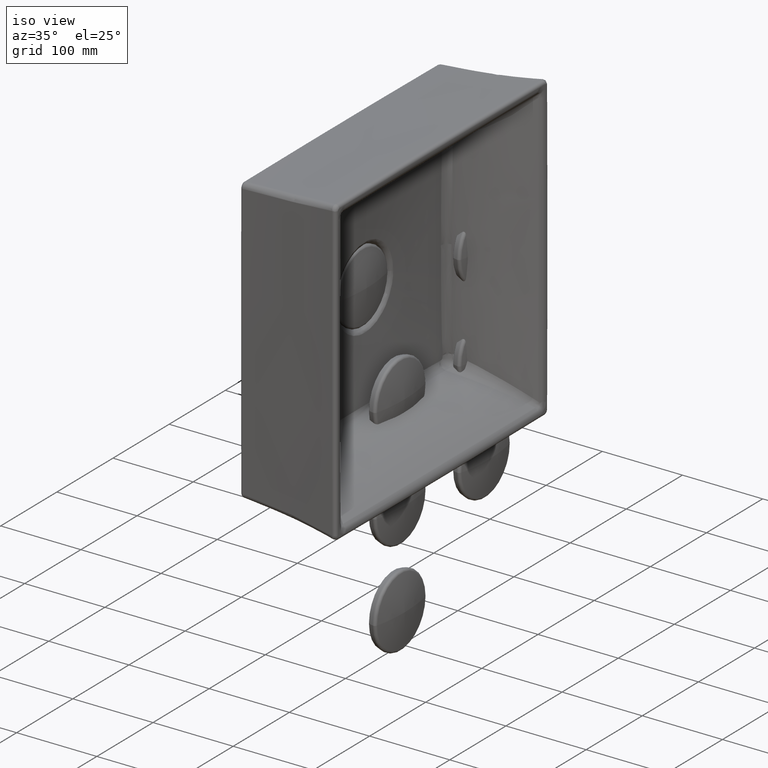
[diagram: clean part render]
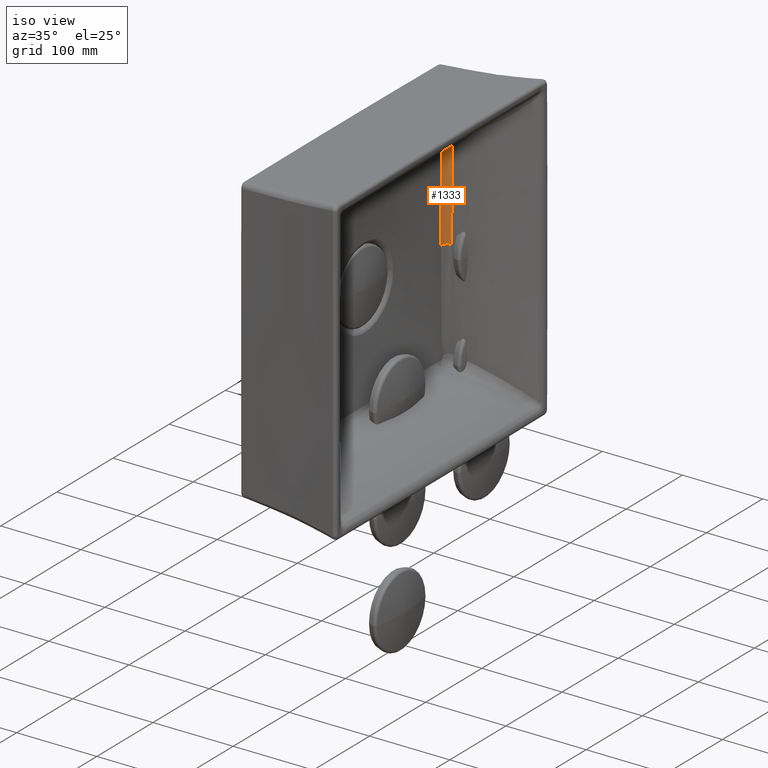
[diagram: same view with one face highlighted and labeled with its STEP entity id]
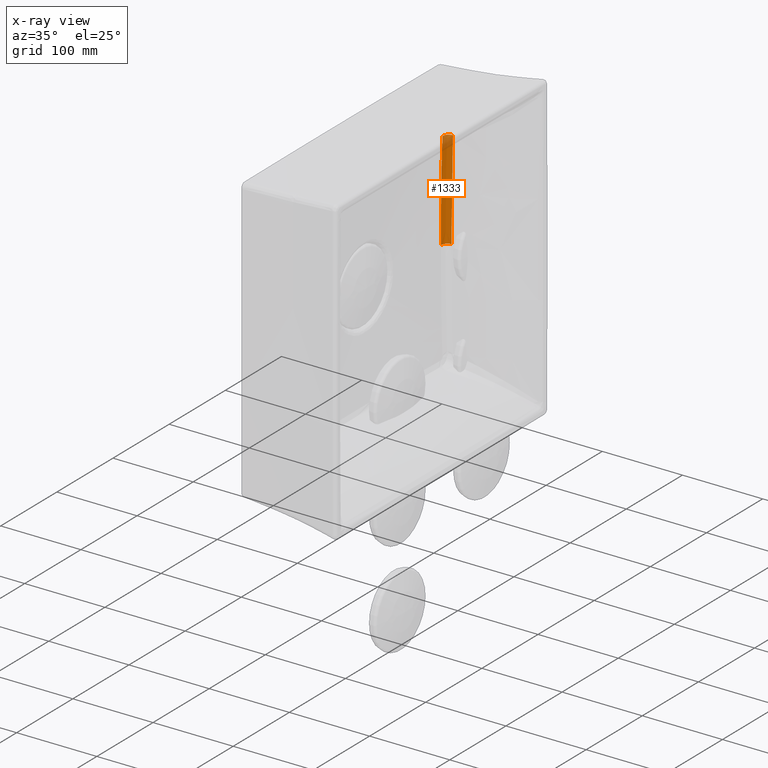
[diagram: x-ray of the same camera — body ghosted, the highlighted face saturated]
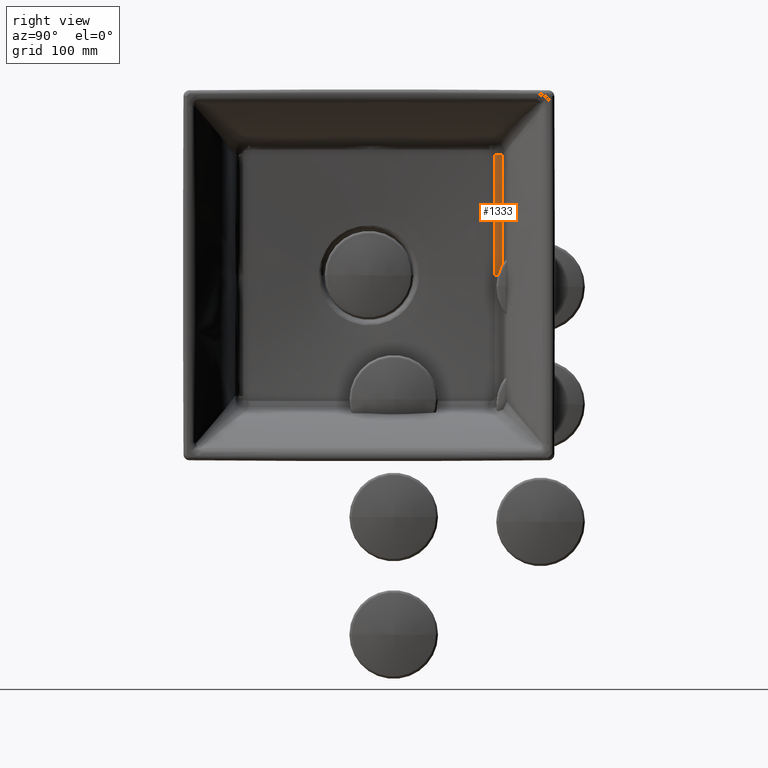
[diagram: same view with one face highlighted and labeled with its STEP entity id]
A machine part, iso view. The second image highlights one B-rep face of the part: STEP entity #1333.
The next image is the same camera in x-ray: the body ghosted, the highlighted face saturated — about 12% of this face is hidden behind the body in this view.
A second angle (right view) of the same face is appended — the face is thin or edge-on in the first view.
In plain terms, the highlighted face is a freeform B-spline surface patch.
Its self-contained STEP definition (entity closure, byte-faithful):
#221=B_SPLINE_SURFACE_WITH_KNOTS('',3,2,((#18551,#18552,#18553),(#18554,
#18555,#18556),(#18557,#18558,#18559),(#18560,#18561,#18562),(#18563,#18564,
#18565),(#18566,#18567,#18568),(#18569,#18570,#18571),(#18572,#18573,#18574),
(#18575,#18576,#18577),(#18578,#18579,#18580),(#18581,#18582,#18583)),
 .UNSPECIFIED.,.F.,.F.,.F.,(4,1,1,1,1,1,1,1,4),(3,3),(0.,0.1127902414595,
0.2422217369636,0.3813047777728,0.5205573631273,0.6462542006335,0.7606890494603,
0.8754636937959,1.),(0.,1.),.UNSPECIFIED.);
#885=B_SPLINE_CURVE_WITH_KNOTS('',3,(#16564,#16565,#16566,#16567,#16568,
#16569),.UNSPECIFIED.,.F.,.F.,(4,2,4),(0.,0.5,1.),.UNSPECIFIED.);
#933=B_SPLINE_CURVE_WITH_KNOTS('',2,(#18154,#18155,#18156),
 .UNSPECIFIED.,.F.,.F.,(3,3),(0.,1.),.UNSPECIFIED.);
#936=B_SPLINE_CURVE_WITH_KNOTS('',3,(#18211,#18212,#18213,#18214),
 .UNSPECIFIED.,.F.,.F.,(4,4),(0.,1.),.UNSPECIFIED.);
#943=B_SPLINE_CURVE_WITH_KNOTS('',2,(#18503,#18504,#18505),
 .UNSPECIFIED.,.F.,.F.,(3,3),(0.,1.),.UNSPECIFIED.);
#1333=ADVANCED_FACE('',(#1919),#221,.T.);
#1919=FACE_OUTER_BOUND('',#2369,.T.);
#2369=EDGE_LOOP('',(#3646,#3647,#3648,#3649));
#3646=ORIENTED_EDGE('',*,*,#5882,.F.);
#3647=ORIENTED_EDGE('',*,*,#5824,.T.);
#3648=ORIENTED_EDGE('',*,*,#5872,.T.);
#3649=ORIENTED_EDGE('',*,*,#5875,.F.);
#5009=VERTEX_POINT('',#16494);
#5010=VERTEX_POINT('',#16570);
#5036=VERTEX_POINT('',#18157);
#5038=VERTEX_POINT('',#18210);
#5824=EDGE_CURVE('',#5010,#5009,#885,.T.);
#5872=EDGE_CURVE('',#5009,#5036,#933,.T.);
#5875=EDGE_CURVE('',#5038,#5036,#936,.T.);
#5882=EDGE_CURVE('',#5010,#5038,#943,.T.);
#16494=CARTESIAN_POINT('',(-7.510748808529E-011,35.51507455978,128.3878301337));
#16564=CARTESIAN_POINT('',(123.523633532597,37.4301273046819,128.324713946754));
#16565=CARTESIAN_POINT('',(102.941481543329,36.6137084418915,128.297175470709));
#16566=CARTESIAN_POINT('',(82.3399908702891,36.0889318838234,128.319966975769));
#16567=CARTESIAN_POINT('',(41.1556660846177,35.5545912833512,128.364788248153));
#16568=CARTESIAN_POINT('',(20.5722766242821,35.5147226266167,128.387789350699));
#16569=CARTESIAN_POINT('',(-1.5579417596144E-010,35.5150697396343,128.387830462347));
#16570=CARTESIAN_POINT('',(123.5236337689,37.43012133919,128.3247141903));
#18154=CARTESIAN_POINT('',(1.07586662902669E-005,35.515069603232,128.387828464423));
#18155=CARTESIAN_POINT('',(6.60102787594609E-006,35.9889278600332,135.337748844226));
#18156=CARTESIAN_POINT('',(-1.07546630365109E-005,42.8356779505172,136.621472615242));
#18157=CARTESIAN_POINT('',(6.642036136698E-011,42.83568745533,136.6214743312));
#18210=CARTESIAN_POINT('',(123.1949308056,44.65141324356,136.7831983913));
#18211=CARTESIAN_POINT('',(123.194930834521,44.6514113695285,136.7832077662));
#18212=CARTESIAN_POINT('',(91.0114842909299,43.4405767519642,136.640417571784));
#18213=CARTESIAN_POINT('',(49.9467912015205,42.8348610454957,136.621319256447));
#18214=CARTESIAN_POINT('',(6.05569080364278E-011,42.8356874784999,136.621474207629));
#18503=CARTESIAN_POINT('',(123.52361217282,37.4301177763885,128.324722654224));
#18504=CARTESIAN_POINT('',(123.477756514711,37.717016801895,135.396130806559));
#18505=CARTESIAN_POINT('',(123.194959369911,44.6514092380496,136.78316823987));
#18551=CARTESIAN_POINT('',(-0.5281813091843,42.83569546306,136.6214722083));
#18552=CARTESIAN_POINT('',(-0.5283893709273,35.98894359251,135.3377473234));
#18553=CARTESIAN_POINT('',(-0.5283538963646,35.5150875574,128.3878249312));
#18554=CARTESIAN_POINT('',(4.644332703978,42.83543942898,136.6214946617));
#18555=CARTESIAN_POINT('',(4.646288096661,35.98872397834,135.3377882049));
#18556=CARTESIAN_POINT('',(4.646005686752,35.51482448757,128.3879070595));
#18557=CARTESIAN_POINT('',(15.7504580039,42.8401563726,136.6203650271));
#18558=CARTESIAN_POINT('',(15.75984095448,35.99232175093,135.3362269972));
#18559=CARTESIAN_POINT('',(15.7595818825,35.51969346177,128.3850771449));
#18560=CARTESIAN_POINT('',(33.22630748234,42.88521817245,136.6183672732));
#18561=CARTESIAN_POINT('',(33.25716057188,36.03139410509,135.3309757339));
#18562=CARTESIAN_POINT('',(33.2593568125,35.56672064167,128.3727356879));
#18563=CARTESIAN_POINT('',(51.90566972535,43.00500264401,136.6210890484));
#18564=CARTESIAN_POINT('',(51.97158382088,36.13951719495,135.3258316264));
#18565=CARTESIAN_POINT('',(51.97931621285,35.6922325204,128.3532853811));
#18566=CARTESIAN_POINT('',(70.40376721233,43.22905922203,136.6350078467));
#18567=CARTESIAN_POINT('',(70.5169209948,36.34714287722,135.3260051168));
#18568=CARTESIAN_POINT('',(70.53297642049,35.92776586006,128.3324085473));
#18569=CARTESIAN_POINT('',(87.76414292231,43.56007948951,136.6636502164));
#18570=CARTESIAN_POINT('',(87.93167395639,36.65914245192,135.3352550019));
#18571=CARTESIAN_POINT('',(87.95759624134,36.27662758677,128.3161275941));
#18572=CARTESIAN_POINT('',(103.9988627888,43.98548164606,136.7069771498));
#18573=CARTESIAN_POINT('',(104.2212988824,37.0661978689,135.3547330447));
#18574=CARTESIAN_POINT('',(104.2570112976,36.7258254899,128.3093788115));
#18575=CARTESIAN_POINT('',(120.178791642,44.52192845863,136.7672916693));
#18576=CARTESIAN_POINT('',(120.4536546148,37.58819063856,135.3865684973));
#18577=CARTESIAN_POINT('',(120.4983064265,37.29305813667,128.3176768776));
#18578=CARTESIAN_POINT('',(131.1249881204,44.95595759444,136.8193646864));
#18579=CARTESIAN_POINT('',(131.431134951,38.01721796426,135.4168946187));
#18580=CARTESIAN_POINT('',(131.4808388273,37.75234113058,128.3363544294));
#18581=CARTESIAN_POINT('',(136.8219100283,45.19864682223,136.849271721));
#18582=CARTESIAN_POINT('',(137.1424518396,38.2592058399,135.4350611246));
#18583=CARTESIAN_POINT('',(137.1943926041,38.00920519315,128.3503323616));